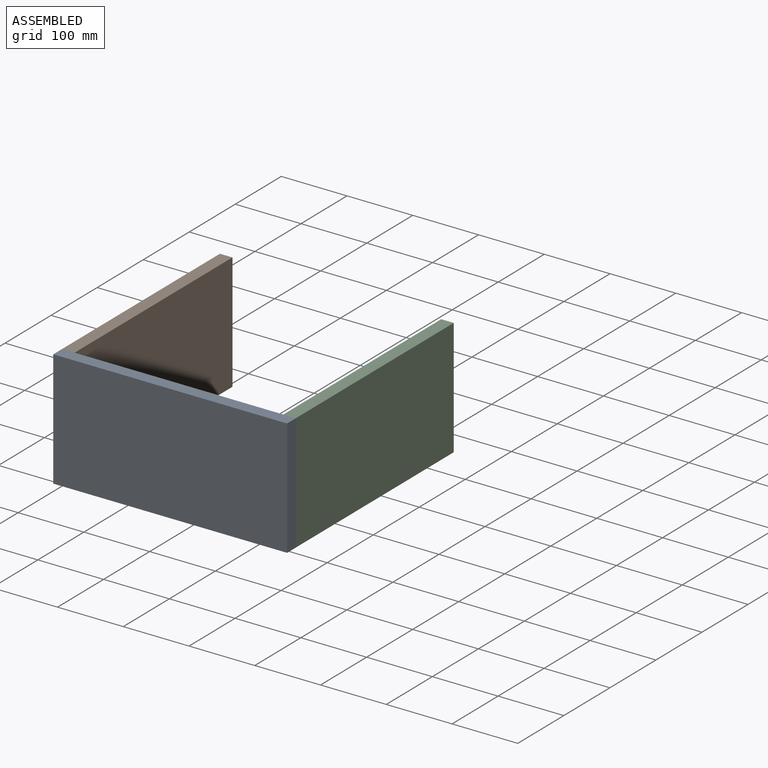
[diagram: assembled view]
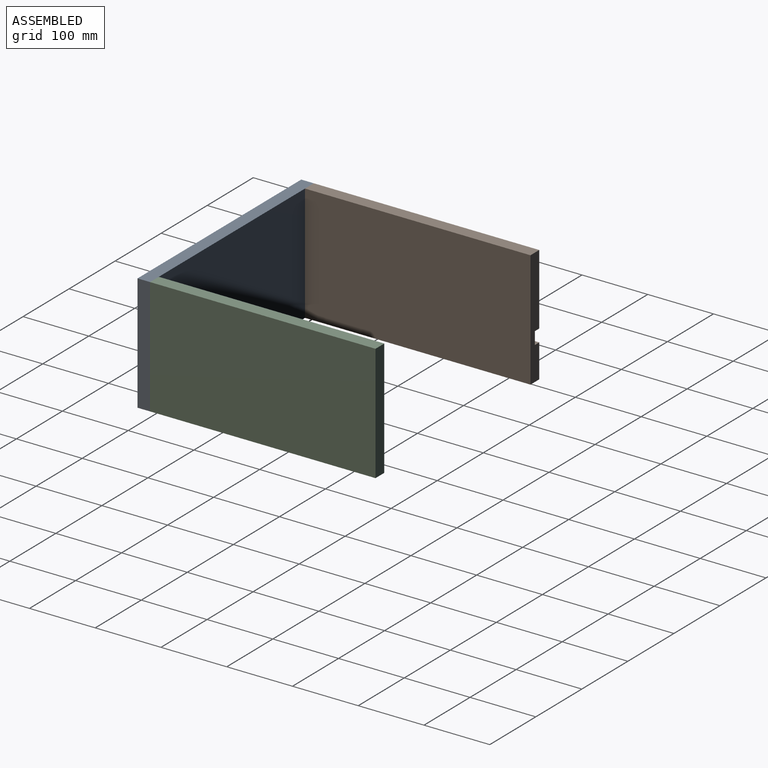
[diagram: assembled view, second angle]
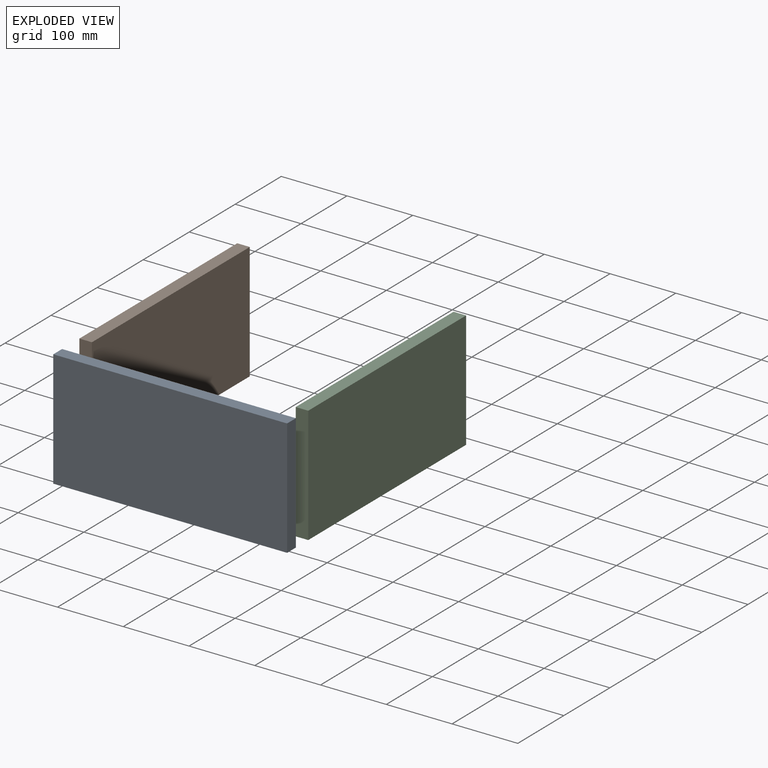
[diagram: exploded view]
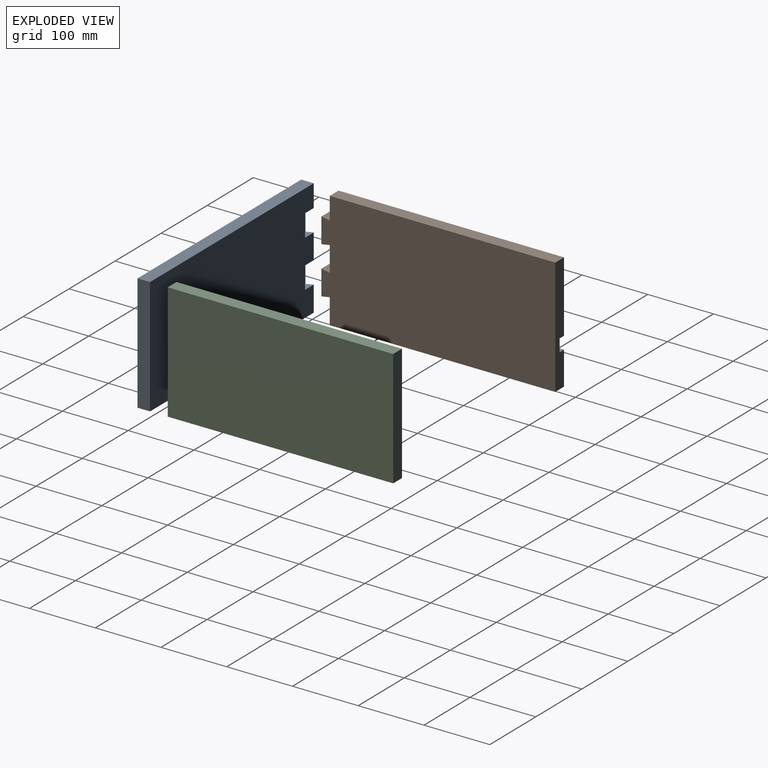
[diagram: exploded view, second angle]
ASSEMBLY  parts=3 mates=2
PART A: 14 faces, bbox 355.6x19.1x177.8 mm
  f0: plane 177.8x19.05mm, normal (-1,0,0), area 2476.2mm2, adj f1,f2,f4,f5,f6,f7,f8,f10
  f1: plane 355.6x19.05mm, normal (0,0,1), area 6774.2mm2, adj f0,f3,f4,f5
  f2: plane 355.6x19.05mm, normal (0,0,-1), area 6774.2mm2, adj f0,f3,f4,f5
  f3: plane 177.8x19.05mm, normal (1,0,0), area 3387.1mm2, adj f1,f2,f4,f5
  f4: plane 355.6x177.8mm, normal (0,-1,0), area 63225.7mm2, adj f0,f1,f2,f3
  f5: plane 355.6x177.8mm, normal (0,1,0), area 61944.7mm2, adj f0,f1,f2,f3,f6,f7,f9,f10
  f6: plane 19.05x12.7mm, normal (0,-0.17,0.98), area 245.7mm2, adj f0,f5,f8,f9
  f7: plane 19.05x12.7mm, normal (0,-0.17,-0.98), area 245.7mm2, adj f0,f5,f8,f9
  f8: plane 38.1x19.05mm, normal (0,1,0), area 725.8mm2, adj f0,f6,f7,f9
  f9: plane 38.1x12.7mm, normal (-1,0,0), area 455.4mm2, adj f5,f6,f7,f8
  f10: plane 19.05x12.7mm, normal (0,-0.17,-0.98), area 245.7mm2, adj f0,f5,f11,f13
  f11: plane 38.1x19.05mm, normal (0,1,0), area 725.8mm2, adj f0,f10,f12,f13
  f12: plane 19.05x12.7mm, normal (0,-0.17,0.98), area 245.7mm2, adj f0,f5,f11,f13
  f13: plane 38.1x12.7mm, normal (-1,0,0), area 455.4mm2, adj f5,f10,f11,f12
PART B: 18 faces, bbox 355.6x19.1x177.8 mm
  f0: plane 355.6x177.8mm, normal (0,1,0), area 57039.8mm2, adj f1,f2,f3,f4,f5,f6,f7,f8
  f1: plane 19.05x12.7mm, normal (0.17,0,-0.98), area 245.7mm2, adj f0,f2,f12,f13
  f2: plane 38.47x19.05mm, normal (-1,0,0), area 732.8mm2, adj f0,f1,f3,f13
  f3: plane 342.9x19.05mm, normal (0,0,-1), area 6532.2mm2, adj f0,f2,f4,f13
  f4: plane 177.8x19.05mm, normal (1,0,0), area 3205.6mm2, adj f0,f3,f5,f13,f14,f16,f17
  f5: plane 342.9x19.05mm, normal (0,0,1), area 6532.2mm2, adj f0,f4,f6,f13
  f6: plane 33.99x19.05mm, normal (-1,0,0), area 647.5mm2, adj f0,f5,f7,f13
  f7: plane 19.05x12.7mm, normal (0.17,0,0.98), area 245.7mm2, adj f0,f6,f8,f13
  f8: plane 38.1x19.05mm, normal (-1,0,0), area 725.8mm2, adj f0,f7,f9,f13
  f9: plane 19.05x12.7mm, normal (0.17,0,-0.98), area 245.7mm2, adj f0,f8,f10,f13
  f10: plane 38.1x19.05mm, normal (-1,0,0), area 725.8mm2, adj f0,f9,f11,f13
  f11: plane 19.05x12.7mm, normal (0.17,0,0.98), area 245.7mm2, adj f0,f10,f12,f13
  f12: plane 38.1x19.05mm, normal (-1,0,0), area 725.8mm2, adj f0,f1,f11,f13
  f13: plane 355.6x177.8mm, normal (0,-1,0), area 61878.5mm2, adj f1,f2,f3,f4,f5,f6,f7,f8
  f14: plane 254x9.53mm, normal (0,0,1), area 2419.3mm2, adj f0,f4,f15,f17
  f15: plane 19.05x9.53mm, normal (1,0,0), area 181.5mm2, adj f0,f14,f16,f17
  f16: plane 254x9.53mm, normal (0,0,-1), area 2419.3mm2, adj f0,f4,f15,f17
  f17: plane 254x19.05mm, normal (0,1,0), area 4838.7mm2, adj f4,f14,f15,f16
PART C: 6 faces, bbox 19.1x342.9x177.8 mm
  f0: plane 342.9x19.05mm, normal (0,0,1), area 6532.2mm2, adj f1,f3,f4,f5
  f1: plane 177.8x19.05mm, normal (0,-1,0), area 3387.1mm2, adj f0,f2,f4,f5
  f2: plane 342.9x19.05mm, normal (0,0,-1), area 6532.2mm2, adj f1,f3,f4,f5
  f3: plane 177.8x19.05mm, normal (0,1,0), area 3387.1mm2, adj f0,f2,f4,f5
  f4: plane 342.9x177.8mm, normal (1,0,0), area 60967.6mm2, adj f0,f1,f2,f3
  f5: plane 342.9x177.8mm, normal (-1,0,0), area 60967.6mm2, adj f0,f1,f2,f3
PLACE A t=(-3.18,0,0)mm
PLACE B rot(axis=(0,0,1),90deg) t=(-3.18,-12.7,0)mm
PLACE C t=(333.38,0,0)mm
MATE fastened B.f8 <-> A.f11  axis (0,-1,0) through (6.35,-12.7,127)mm
MATE fastened C.f1 <-> A.f5  axis (0,-1,0) through (352.43,0,177.8)mm
